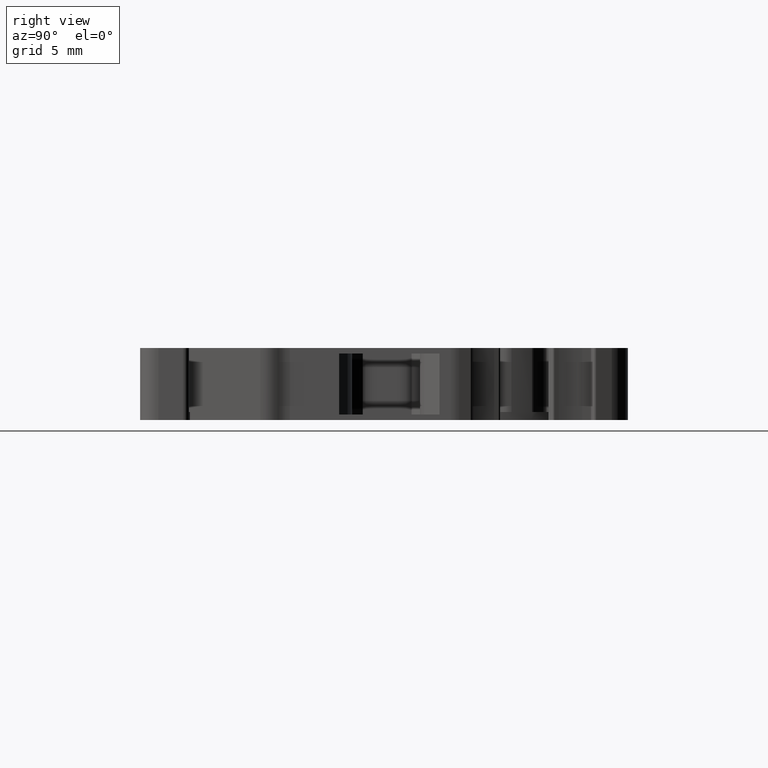
[diagram: clean part render]
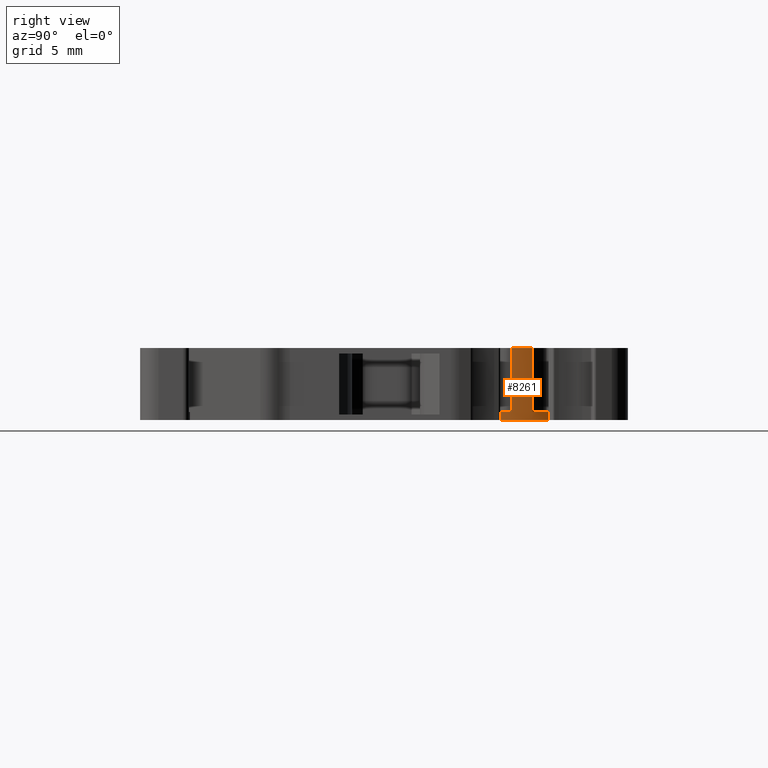
[diagram: same view with one face highlighted and labeled with its STEP entity id]
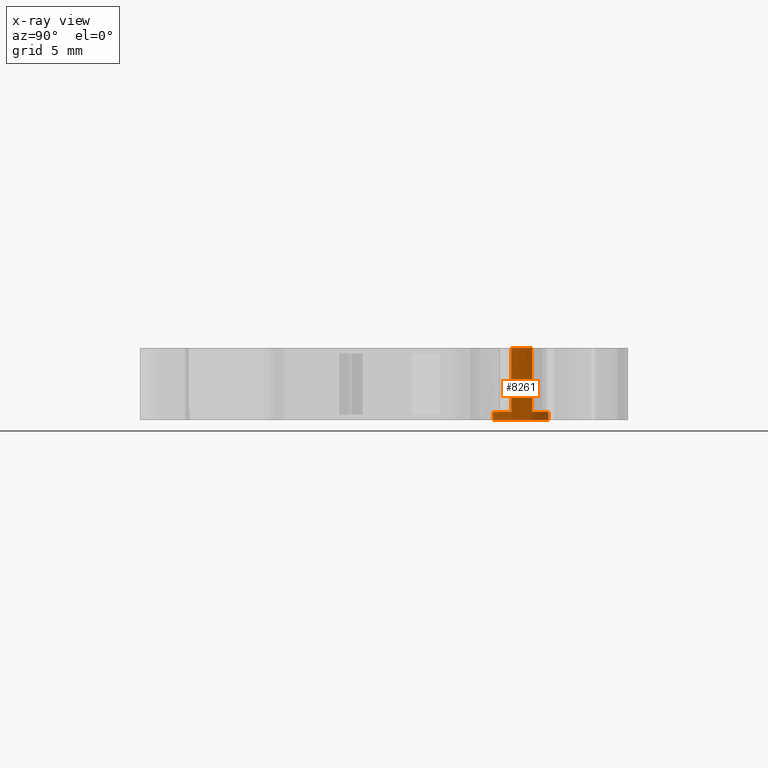
[diagram: x-ray of the same camera — body ghosted, the highlighted face saturated]
A machine part, right view. The second image highlights one B-rep face of the part: STEP entity #8261.
The next image is the same camera in x-ray: the body ghosted, the highlighted face saturated — about 0% of this face is hidden behind the body in this view.
In plain terms, the highlighted cylindrical surface (partial cylindrical patch) has radius 10 mm, axis along (0, 0, -1).
Its self-contained STEP definition (entity closure, byte-faithful):
#454 = EDGE_LOOP ( 'NONE', ( #9238, #9168, #9181, #9313, #9294, #9335, #9320, #9274 ) ) ;
#1323 = CARTESIAN_POINT ( 'NONE',  ( 1474.904638512023000, 949.6131062690834600, 2.949999999999999700 ) ) ;
#1351 = CARTESIAN_POINT ( 'NONE',  ( 1474.904638512021800, 949.6131062690830000, -2.299999999999999800 ) ) ;
#1575 = CARTESIAN_POINT ( 'NONE',  ( 1475.796509634867100, 946.4112109902016500, -2.949999999999999700 ) ) ;
#1593 = CARTESIAN_POINT ( 'NONE',  ( 1475.796509634866000, 946.4112109902019900, -2.299999999999999800 ) ) ;
#1619 = CARTESIAN_POINT ( 'NONE',  ( 1475.516387835675900, 947.9323773257893900, 2.949999999999999700 ) ) ;
#1645 = CARTESIAN_POINT ( 'NONE',  ( 1475.516388186390000, 947.9323760048860100, -2.299999999999999800 ) ) ;
#1697 = CARTESIAN_POINT ( 'NONE',  ( 1474.141418892957100, 950.9584329120077700, -2.949999999999999700 ) ) ;
#2325 = CARTESIAN_POINT ( 'NONE',  ( 1474.141418892955900, 950.9584329120069700, -2.299999999999999800 ) ) ;
#3538 = CARTESIAN_POINT ( 'NONE',  ( 1465.851264466720100, 945.3661758015759900, -2.299999999999999800 ) ) ;
#3539 = DIRECTION ( 'NONE',  ( -0.0000000000000000000, -0.0000000000000000000, -1.000000000000000000 ) ) ;
#3545 = DIRECTION ( 'NONE',  ( 1.000000000000000000, -1.554312234475183300E-013, 0.0000000000000000000 ) ) ;
#3574 = CARTESIAN_POINT ( 'NONE',  ( 1474.904638512021800, 949.6131062690830000, -2.299999999999999800 ) ) ;
#3586 = LINE ( 'NONE', #3574, #7372 ) ;
#3593 = DIRECTION ( 'NONE',  ( 0.0000000000000000000, 0.0000000000000000000, 1.000000000000000000 ) ) ;
#3622 = CARTESIAN_POINT ( 'NONE',  ( 1475.516388186390000, 947.9323760048860100, -2.299999999999999800 ) ) ;
#3623 = DIRECTION ( 'NONE',  ( 0.0000000000000000000, 0.0000000000000000000, 1.000000000000000000 ) ) ;
#3639 = LINE ( 'NONE', #3622, #7238 ) ;
#3696 = DIRECTION ( 'NONE',  ( 1.000000000000000000, 1.221245327087643900E-013, 0.0000000000000000000 ) ) ;
#3707 = CARTESIAN_POINT ( 'NONE',  ( 1465.851264466720100, 945.3661758015759900, -2.299999999999999800 ) ) ;
#3737 = DIRECTION ( 'NONE',  ( -0.0000000000000000000, -0.0000000000000000000, -1.000000000000000000 ) ) ;
#3952 = CARTESIAN_POINT ( 'NONE',  ( 1474.141418892955900, 950.9584329120069700, 2.899999999999999900 ) ) ;
#3958 = LINE ( 'NONE', #3973, #8643 ) ;
#3959 = DIRECTION ( 'NONE',  ( 0.0000000000000000000, 0.0000000000000000000, -1.000000000000000000 ) ) ;
#3973 = CARTESIAN_POINT ( 'NONE',  ( 1475.796509634866000, 946.4112109902019900, 2.899999999999999900 ) ) ;
#3985 = LINE ( 'NONE', #3952, #8681 ) ;
#4020 = DIRECTION ( 'NONE',  ( 0.0000000000000000000, 0.0000000000000000000, -1.000000000000000000 ) ) ;
#4860 = EDGE_CURVE ( 'NONE', #11630, #11605, #7366, .T. ) ;
#4873 = EDGE_CURVE ( 'NONE', #9083, #9079, #3586, .T. ) ;
#4886 = EDGE_CURVE ( 'NONE', #11630, #11635, #3639, .T. ) ;
#4916 = EDGE_CURVE ( 'NONE', #9036, #9083, #8564, .T. ) ;
#5096 = EDGE_CURVE ( 'NONE', #11605, #11588, #3958, .T. ) ;
#5113 = EDGE_CURVE ( 'NONE', #9036, #11695, #3985, .T. ) ;
#5286 = EDGE_CURVE ( 'NONE', #11695, #11588, #8537, .T. ) ;
#5291 = EDGE_CURVE ( 'NONE', #11635, #9079, #8549, .T. ) ;
#7238 = VECTOR ( 'NONE', #3623, 1000.000000000000000 ) ;
#7362 = AXIS2_PLACEMENT_3D ( 'NONE', #3538, #3539, #3545 ) ;
#7366 = CIRCLE ( 'NONE', #7362, 10.00000000000023100 ) ;
#7372 = VECTOR ( 'NONE', #3593, 1000.000000000000000 ) ;
#8055 = CARTESIAN_POINT ( 'NONE',  ( 1465.851264466720100, 945.3661758015759900, -2.949999999999999700 ) ) ;
#8056 = DIRECTION ( 'NONE',  ( 0.0000000000000000000, 0.0000000000000000000, -1.000000000000000000 ) ) ;
#8057 = DIRECTION ( 'NONE',  ( -1.000000000000000000, 0.0000000000000000000, 0.0000000000000000000 ) ) ;
#8084 = DIRECTION ( 'NONE',  ( 1.000000000000000000, 0.0000000000000000000, 0.0000000000000000000 ) ) ;
#8098 = DIRECTION ( 'NONE',  ( 0.0000000000000000000, 0.0000000000000000000, 1.000000000000000000 ) ) ;
#8112 = CARTESIAN_POINT ( 'NONE',  ( 1465.851264466720100, 945.3661758015759900, 2.949999999999999700 ) ) ;
#8261 = ADVANCED_FACE ( 'NONE', ( #12263 ), #12297, .T. ) ;
#8537 = CIRCLE ( 'NONE', #8548, 10.00000000000156300 ) ;
#8548 = AXIS2_PLACEMENT_3D ( 'NONE', #8055, #8056, #8057 ) ;
#8549 = CIRCLE ( 'NONE', #8555, 10.00000000000045300 ) ;
#8555 = AXIS2_PLACEMENT_3D ( 'NONE', #8112, #8098, #8084 ) ;
#8559 = AXIS2_PLACEMENT_3D ( 'NONE', #3707, #3737, #3696 ) ;
#8564 = CIRCLE ( 'NONE', #8559, 10.00000000000023100 ) ;
#8643 = VECTOR ( 'NONE', #3959, 1000.000000000000000 ) ;
#8681 = VECTOR ( 'NONE', #4020, 1000.000000000000000 ) ;
#9036 = VERTEX_POINT ( 'NONE', #2325 ) ;
#9079 = VERTEX_POINT ( 'NONE', #1323 ) ;
#9083 = VERTEX_POINT ( 'NONE', #1351 ) ;
#9168 = ORIENTED_EDGE ( 'NONE', *, *, #4860, .T. ) ;
#9181 = ORIENTED_EDGE ( 'NONE', *, *, #5096, .T. ) ;
#9238 = ORIENTED_EDGE ( 'NONE', *, *, #4886, .F. ) ;
#9274 = ORIENTED_EDGE ( 'NONE', *, *, #5291, .F. ) ;
#9294 = ORIENTED_EDGE ( 'NONE', *, *, #5113, .F. ) ;
#9313 = ORIENTED_EDGE ( 'NONE', *, *, #5286, .F. ) ;
#9320 = ORIENTED_EDGE ( 'NONE', *, *, #4873, .T. ) ;
#9335 = ORIENTED_EDGE ( 'NONE', *, *, #4916, .T. ) ;
#10316 = AXIS2_PLACEMENT_3D ( 'NONE', #12277, #12299, #12264 ) ;
#11588 = VERTEX_POINT ( 'NONE', #1575 ) ;
#11605 = VERTEX_POINT ( 'NONE', #1593 ) ;
#11630 = VERTEX_POINT ( 'NONE', #1645 ) ;
#11635 = VERTEX_POINT ( 'NONE', #1619 ) ;
#11695 = VERTEX_POINT ( 'NONE', #1697 ) ;
#12263 = FACE_OUTER_BOUND ( 'NONE', #454, .T. ) ;
#12264 = DIRECTION ( 'NONE',  ( 1.000000000000000000, 0.0000000000000000000, 0.0000000000000000000 ) ) ;
#12277 = CARTESIAN_POINT ( 'NONE',  ( 1465.851264466720100, 945.3661758015759900, 2.899999999999999900 ) ) ;
#12297 = CYLINDRICAL_SURFACE ( 'NONE', #10316, 10.00000000000023100 ) ;
#12299 = DIRECTION ( 'NONE',  ( 0.0000000000000000000, 0.0000000000000000000, -1.000000000000000000 ) ) ;